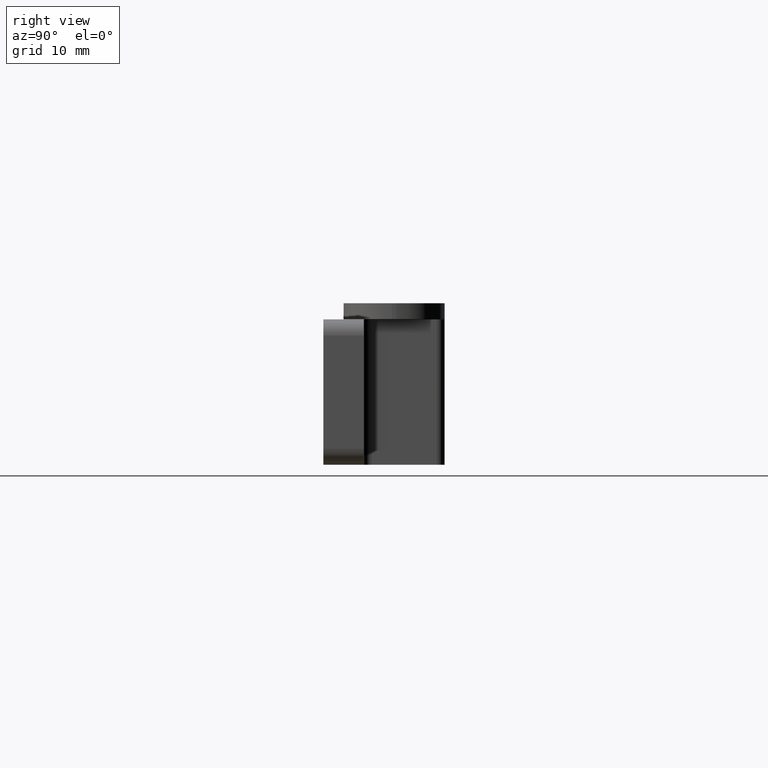
[diagram: clean part render]
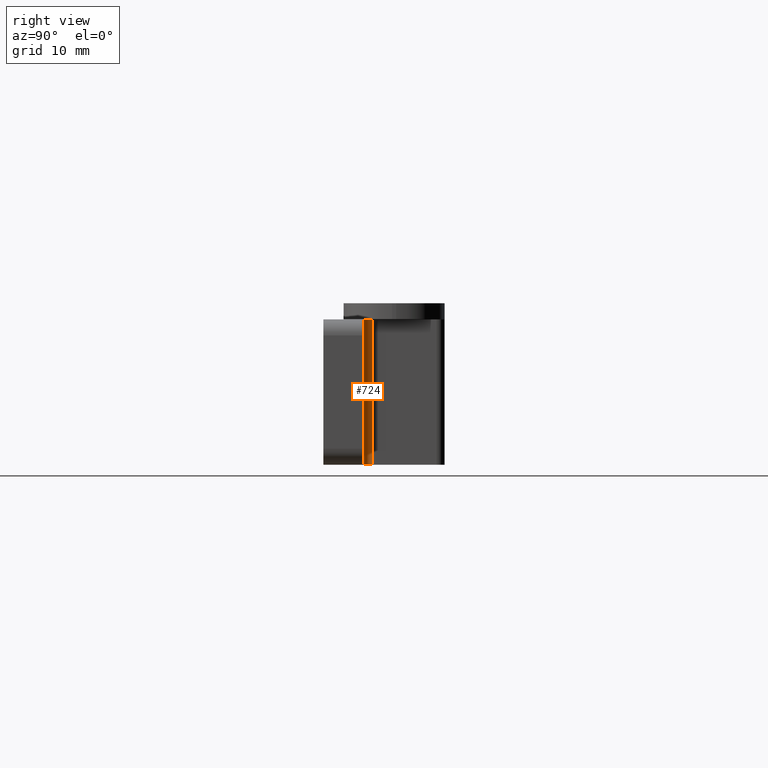
[diagram: same view with one face highlighted and labeled with its STEP entity id]
A machine part, right view. The second image highlights one B-rep face of the part: STEP entity #724.
In plain terms, the highlighted cylindrical surface (edge-blend (fillet) strip) has radius 1 mm, axis along (0, 0, 1).
Its self-contained STEP definition (entity closure, byte-faithful):
#72=FACE_OUTER_BOUND('',#114,.T.);
#114=EDGE_LOOP('',(#563,#564,#565,#566));
#179=LINE('',#1155,#243);
#185=LINE('',#1173,#249);
#243=VECTOR('',#914,18.);
#249=VECTOR('',#936,18.);
#286=CIRCLE('',#763,1.);
#291=CIRCLE('',#771,1.);
#329=VERTEX_POINT('',#1091);
#330=VERTEX_POINT('',#1093);
#344=VERTEX_POINT('',#1127);
#345=VERTEX_POINT('',#1129);
#400=EDGE_CURVE('',#330,#329,#286,.T.);
#418=EDGE_CURVE('',#345,#344,#291,.T.);
#431=EDGE_CURVE('',#344,#330,#179,.T.);
#441=EDGE_CURVE('',#329,#345,#185,.T.);
#563=ORIENTED_EDGE('',*,*,#400,.T.);
#564=ORIENTED_EDGE('',*,*,#441,.T.);
#565=ORIENTED_EDGE('',*,*,#418,.T.);
#566=ORIENTED_EDGE('',*,*,#431,.T.);
#700=CYLINDRICAL_SURFACE('',#787,1.);
#724=ADVANCED_FACE('',(#72),#700,.F.);
#763=AXIS2_PLACEMENT_3D('',#1094,#860,#861);
#771=AXIS2_PLACEMENT_3D('',#1130,#889,#890);
#787=AXIS2_PLACEMENT_3D('',#1172,#934,#935);
#860=DIRECTION('center_axis',(0.,0.,-1.));
#861=DIRECTION('ref_axis',(-0.707106781186546,-0.707106781186549,0.));
#889=DIRECTION('center_axis',(0.,0.,1.));
#890=DIRECTION('ref_axis',(-0.707106781186546,-0.707106781186549,0.));
#914=DIRECTION('',(0.,0.,-1.));
#934=DIRECTION('center_axis',(0.,0.,1.));
#935=DIRECTION('ref_axis',(-0.707106781186546,-0.707106781186549,0.));
#936=DIRECTION('',(0.,0.,1.));
#1091=CARTESIAN_POINT('',(73.,6.,0.));
#1093=CARTESIAN_POINT('',(74.,5.,0.));
#1094=CARTESIAN_POINT('Origin',(74.,6.,0.));
#1127=CARTESIAN_POINT('',(74.,5.,18.));
#1129=CARTESIAN_POINT('',(73.,6.,18.));
#1130=CARTESIAN_POINT('Origin',(74.,6.,18.));
#1155=CARTESIAN_POINT('',(74.,5.,0.));
#1172=CARTESIAN_POINT('Origin',(74.,6.,0.));
#1173=CARTESIAN_POINT('',(73.,6.,0.));